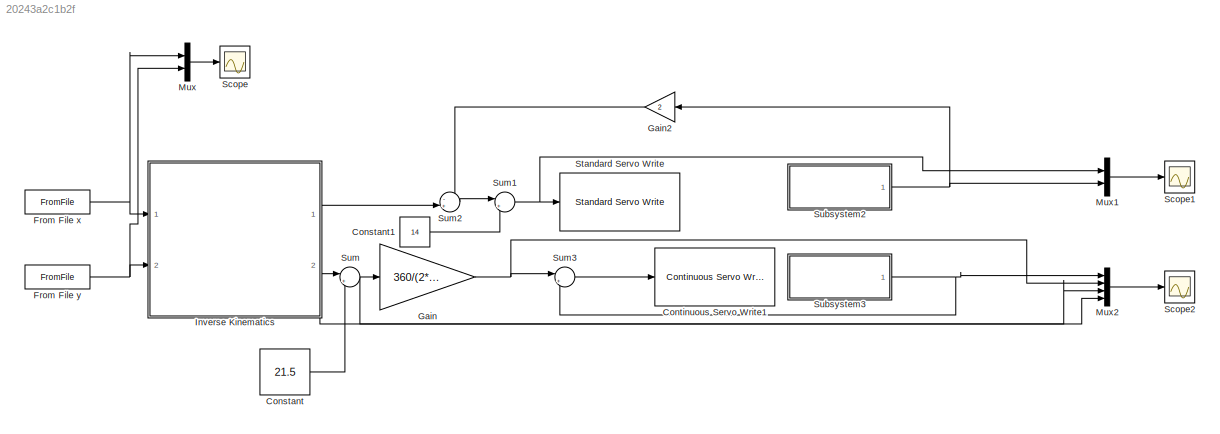
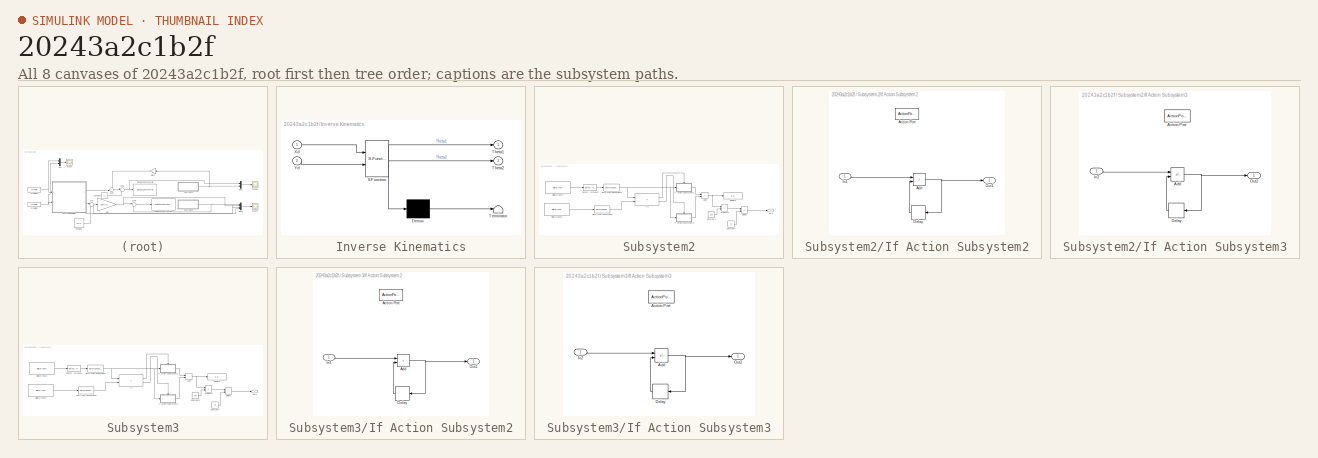
[diagram: thumbnail index - all 8 canvases of the model, root first then tree order]
MODEL slx_20243a2c1b2f
KIND model
CONFIG AbsTol = auto
CONFIG EnableMultiTasking = on
CONFIG FixedStep = 0.001
CONFIG MaxStep = auto
CONFIG MinStep = auto
CONFIG RelTol = 1e-3
CONFIG SampleTimeConstraint = Unconstrained
CONFIG SolverName = FixedStepAuto
CONFIG StartTime = 0.0
CONFIG StopTime = 50.0
BLOCK [Constant] Constant
  Value = 21.5
BLOCK [Constant] Constant1
  Value = 14
BLOCK [Reference] Continuous Servo Write1  REF=arduinolib/Continuous Servo Write
  Ports = [1]
  SourceBlock = arduinolib/Continuous Servo Write
  SourceProductBaseCode = ARDUINO
  SourceType = Arduino Continuous Servo Write
BLOCK [FromFile] From File x
  FileName = matrix_x.mat
  SampleTime = 0
BLOCK [FromFile] From File y
  FileName = matrix_y.mat
  SampleTime = 0
BLOCK [Gain] Gain
  Gain = 360/(2*2.24*pi)
BLOCK [Gain] Gain2
  Gain = 2
BLOCK [SubSystem] Inverse Kinematics
  ErrorFcn = Stateflow.Translate.translate
  PermitHierarchicalResolution = ExplicitOnly
  Ports = [2, 2]
  RequestExecContextInheritance = off
  SFBlockType = MATLAB Function
  TreatAsAtomicUnit = on
BLOCK [Demux] Inverse Kinematics/ Demux 
  Outputs = 1
  Ports = [1, 1]
BLOCK [S-Function] Inverse Kinematics/ SFunction 
  EnableBusSupport = on
  FunctionName = sf_sfun
  PortCounts = [2 3]
  Ports = [2, 3]
  SFcnIsStateOwnerBlock = off
  SFunctionDeploymentMode = off
  Tag = Stateflow S-Function 1
BLOCK [Terminator] Inverse Kinematics/ Terminator 
BLOCK [Outport] Inverse Kinematics/Theta1
  VectorParamsAs1DForOutWhenUnconnected = off
BLOCK [Outport] Inverse Kinematics/Theta2
  Port = 2
  VectorParamsAs1DForOutWhenUnconnected = off
BLOCK [Inport] Inverse Kinematics/Xd
BLOCK [Inport] Inverse Kinematics/Yd
  Port = 2
BLOCK [Mux] Mux
  DisplayOption = bar
  Inputs = 2
  Ports = [2, 1]
BLOCK [Mux] Mux1
  DisplayOption = bar
  Inputs = 2
  Ports = [2, 1]
BLOCK [Mux] Mux2
  DisplayOption = bar
  Ports = [4, 1]
BLOCK [Scope] Scope
  Floating = off
  NumInputPorts = 1
  Ports = [1]
  ScopeSpecificationString = Simulink.scopes.TimeScopeBlockCfg('CurrentConfiguration', extmgr.ConfigurationSet(extmgr.Configuration('Core','General UI',true),extmgr.Configuration('Core','Source UI',true),extmgr.Configuration('Sources','WiredSimulink',true,'DataLoggingVariableName','ScopeData1'),extmgr.Configuration('Visuals','Time Domain',true,'SerializedDisplays',{struct('MinYLimReal','-12.49987','MaxYLimReal','12.49887','YL...<+1415ch>
BLOCK [Scope] Scope1
  Floating = off
  NumInputPorts = 1
  Ports = [1]
  ScopeSpecificationString = Simulink.scopes.TimeScopeBlockCfg('CurrentConfiguration', extmgr.ConfigurationSet(extmgr.Configuration('Core','General UI',true),extmgr.Configuration('Core','Source UI',true),extmgr.Configuration('Sources','WiredSimulink',true,'DataLoggingVariableName','ScopeData1'),extmgr.Configuration('Visuals','Time Domain',true,'SerializedDisplays',{struct('MinYLimReal','-15.07338','MaxYLimReal','135.6604','YL...<+1478ch>
BLOCK [Scope] Scope2
  Floating = off
  NumInputPorts = 1
  Ports = [1]
  ScopeSpecificationString = Simulink.scopes.TimeScopeBlockCfg('CurrentConfiguration', extmgr.ConfigurationSet(extmgr.Configuration('Core','General UI',true),extmgr.Configuration('Core','Source UI',true),extmgr.Configuration('Sources','WiredSimulink',true,'DataLoggingVariableName','ScopeData2'),extmgr.Configuration('Visuals','Time Domain',true,'SerializedDisplays',{struct('MinYLimReal','-38.62837','MaxYLimReal','132.65531','Y...<+1544ch>
BLOCK [Reference] Standard Servo Write  REF=arduinolib/Standard Servo Write
  Ports = [1]
  SourceBlock = arduinolib/Standard Servo Write
  SourceProductBaseCode = ARDUINO
  SourceType = Arduino Standard Servo Write
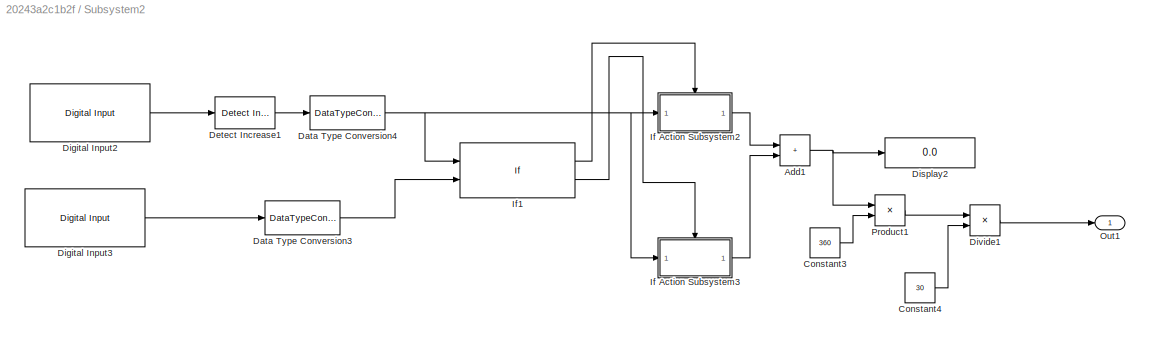
BLOCK [SubSystem] Subsystem2
  Ports = [0, 1]
  RequestExecContextInheritance = off
BLOCK [Sum] Subsystem2/Add1
  IconShape = rectangular
  Ports = [2, 1]
BLOCK [Constant] Subsystem2/Constant3
  Value = 360
BLOCK [Constant] Subsystem2/Constant4
  Value = 30
BLOCK [DataTypeConversion] Subsystem2/Data Type Conversion3
  OutDataTypeStr = int8
  RndMeth = Floor
  SaturateOnIntegerOverflow = off
BLOCK [DataTypeConversion] Subsystem2/Data Type Conversion4
  OutDataTypeStr = int8
  RndMeth = Floor
  SaturateOnIntegerOverflow = off
BLOCK [Reference] Subsystem2/Detect Increase1  REF=simulink/Logic and Bit
Operations/Detect
Increase
  Ports = [1, 1]
  SourceBlock = simulink/Logic and Bit\nOperations/Detect\nIncrease
  SourceProductBaseCode = SL
  SourceType = Detect Increase
BLOCK [Reference] Subsystem2/Digital Input2  REF=arduinolib/Digital Input
  Ports = [0, 1]
  SourceBlock = arduinolib/Digital Input
  SourceProductBaseCode = ARDUINO
  SourceType = Arduino Digital Input
BLOCK [Reference] Subsystem2/Digital Input3  REF=arduinolib/Digital Input
  Ports = [0, 1]
  SourceBlock = arduinolib/Digital Input
  SourceProductBaseCode = ARDUINO
  SourceType = Arduino Digital Input
BLOCK [Display] Subsystem2/Display2
  Decimation = 1
  Ports = [1]
BLOCK [Product] Subsystem2/Divide1
  Inputs = */
  Ports = [2, 1]
BLOCK [SubSystem] Subsystem2/If Action Subsystem2
  Ports = [1, 1, 0, 0, 0, 0, 0, 1]
  RequestExecContextInheritance = off
  TreatAsAtomicUnit = on
BLOCK [ActionPort] Subsystem2/If Action Subsystem2/Action Port
  ActionPortLabel = if(u1 >0 & u2==0)
BLOCK [Sum] Subsystem2/If Action Subsystem2/Add
  IconShape = rectangular
  Ports = [2, 1]
BLOCK [Delay] Subsystem2/If Action Subsystem2/Delay
  DelayLength = 1
  InitialCondition = 0
  InputPortMap = u0
  Ports = [1, 1]
BLOCK [Inport] Subsystem2/If Action Subsystem2/In1
BLOCK [Outport] Subsystem2/If Action Subsystem2/Out1
BLOCK [SubSystem] Subsystem2/If Action Subsystem3
  Ports = [1, 1, 0, 0, 0, 0, 0, 1]
  RequestExecContextInheritance = off
  TreatAsAtomicUnit = on
BLOCK [ActionPort] Subsystem2/If Action Subsystem3/Action Port
  ActionPortLabel = elseif( u1 >0  & u2==1)
BLOCK [Sum] Subsystem2/If Action Subsystem3/Add
  IconShape = rectangular
  Inputs = -+
  Ports = [2, 1]
BLOCK [Delay] Subsystem2/If Action Subsystem3/Delay
  DelayLength = 1
  InitialCondition = 0
  InputPortMap = u0
  Ports = [1, 1]
BLOCK [Inport] Subsystem2/If Action Subsystem3/In2
BLOCK [Outport] Subsystem2/If Action Subsystem3/Out2
BLOCK [If] Subsystem2/If1
  ElseIfExpressions = u1 >0  & u2==1
  IfExpression = u1 >0 & u2==0
  NumInputs = 2
  Ports = [2, 2]
  ShowElse = off
BLOCK [Outport] Subsystem2/Out1
BLOCK [Product] Subsystem2/Product1
  Ports = [2, 1]
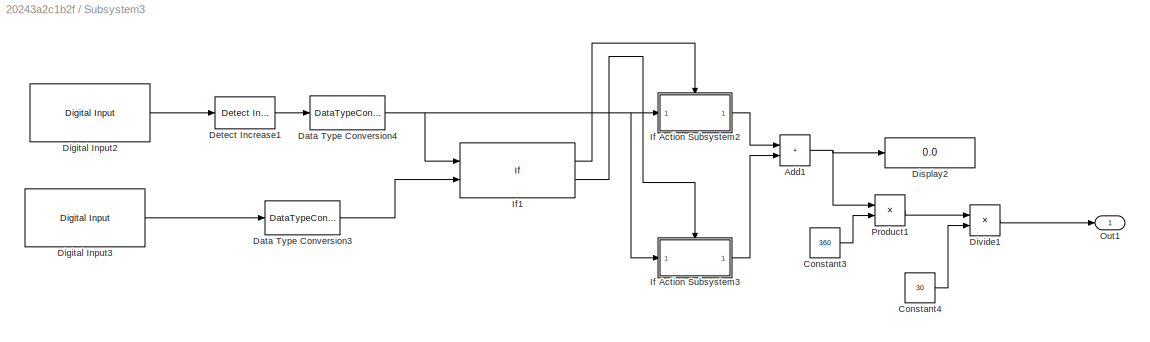
BLOCK [SubSystem] Subsystem3
  Ports = [0, 1]
  RequestExecContextInheritance = off
BLOCK [Sum] Subsystem3/Add1
  IconShape = rectangular
  Ports = [2, 1]
BLOCK [Constant] Subsystem3/Constant3
  Value = 360
BLOCK [Constant] Subsystem3/Constant4
  Value = 30
BLOCK [DataTypeConversion] Subsystem3/Data Type Conversion3
  OutDataTypeStr = int8
  RndMeth = Floor
  SaturateOnIntegerOverflow = off
BLOCK [DataTypeConversion] Subsystem3/Data Type Conversion4
  OutDataTypeStr = int8
  RndMeth = Floor
  SaturateOnIntegerOverflow = off
BLOCK [Reference] Subsystem3/Detect Increase1  REF=simulink/Logic and Bit
Operations/Detect
Increase
  Ports = [1, 1]
  SourceBlock = simulink/Logic and Bit\nOperations/Detect\nIncrease
  SourceProductBaseCode = SL
  SourceType = Detect Increase
BLOCK [Reference] Subsystem3/Digital Input2  REF=arduinolib/Digital Input
  Ports = [0, 1]
  SourceBlock = arduinolib/Digital Input
  SourceProductBaseCode = ARDUINO
  SourceType = Arduino Digital Input
BLOCK [Reference] Subsystem3/Digital Input3  REF=arduinolib/Digital Input
  Ports = [0, 1]
  SourceBlock = arduinolib/Digital Input
  SourceProductBaseCode = ARDUINO
  SourceType = Arduino Digital Input
BLOCK [Display] Subsystem3/Display2
  Decimation = 1
  Ports = [1]
BLOCK [Product] Subsystem3/Divide1
  Inputs = */
  Ports = [2, 1]
BLOCK [SubSystem] Subsystem3/If Action Subsystem2
  Ports = [1, 1, 0, 0, 0, 0, 0, 1]
  RequestExecContextInheritance = off
  TreatAsAtomicUnit = on
BLOCK [ActionPort] Subsystem3/If Action Subsystem2/Action Port
  ActionPortLabel = if(u1 >0 & u2==0)
BLOCK [Sum] Subsystem3/If Action Subsystem2/Add
  IconShape = rectangular
  Ports = [2, 1]
BLOCK [Delay] Subsystem3/If Action Subsystem2/Delay
  DelayLength = 1
  InitialCondition = 0
  InputPortMap = u0
  Ports = [1, 1]
BLOCK [Inport] Subsystem3/If Action Subsystem2/In1
BLOCK [Outport] Subsystem3/If Action Subsystem2/Out1
BLOCK [SubSystem] Subsystem3/If Action Subsystem3
  Ports = [1, 1, 0, 0, 0, 0, 0, 1]
  RequestExecContextInheritance = off
  TreatAsAtomicUnit = on
BLOCK [ActionPort] Subsystem3/If Action Subsystem3/Action Port
  ActionPortLabel = elseif( u1 >0  & u2==1)
BLOCK [Sum] Subsystem3/If Action Subsystem3/Add
  IconShape = rectangular
  Inputs = -+
  Ports = [2, 1]
BLOCK [Delay] Subsystem3/If Action Subsystem3/Delay
  DelayLength = 1
  InitialCondition = 0
  InputPortMap = u0
  Ports = [1, 1]
BLOCK [Inport] Subsystem3/If Action Subsystem3/In2
BLOCK [Outport] Subsystem3/If Action Subsystem3/Out2
BLOCK [If] Subsystem3/If1
  ElseIfExpressions = u1 >0  & u2==1
  IfExpression = u1 >0 & u2==0
  NumInputs = 2
  Ports = [2, 2]
  ShowElse = off
BLOCK [Outport] Subsystem3/Out1
BLOCK [Product] Subsystem3/Product1
  Ports = [2, 1]
BLOCK [Sum] Sum
  Inputs = |++
  Ports = [2, 1]
BLOCK [Sum] Sum1
  Inputs = |++
  Ports = [2, 1]
BLOCK [Sum] Sum2
  Inputs = -+|
  Ports = [2, 1]
BLOCK [Sum] Sum3
  Inputs = |+-
  Ports = [2, 1]
LINE Constant1:1 -> Sum1:2
LINE Constant:1 -> Sum:2
NET From File x:1 -> Inverse Kinematics:1, Mux:1
NET From File y:1 -> Inverse Kinematics:2, Mux:2
LINE Gain2:1 -> Sum2:1
NET Gain:1 -> Mux2:2, Sum3:1
LINE Inverse Kinematics:1 -> Sum2:2
NET Inverse Kinematics:2 -> Mux2:3, Sum:1
LINE Mux1:1 -> Scope1:1
LINE Mux2:1 -> Scope2:1
LINE Mux:1 -> Scope:1
NET Subsystem2/Add1:1 -> Subsystem2/Display2:1, Subsystem2/Product1:1
LINE Subsystem2/Constant3:1 -> Subsystem2/Product1:2
LINE Subsystem2/Constant4:1 -> Subsystem2/Divide1:2
LINE Subsystem2/Data Type Conversion3:1 -> Subsystem2/If1:2
NET Subsystem2/Data Type Conversion4:1 -> Subsystem2/If Action Subsystem2:1, Subsystem2/If Action Subsystem3:1, Subsystem2/If1:1
LINE Subsystem2/Detect Increase1:1 -> Subsystem2/Data Type Conversion4:1
LINE Subsystem2/Digital Input2:1 -> Subsystem2/Detect Increase1:1
LINE Subsystem2/Digital Input3:1 -> Subsystem2/Data Type Conversion3:1
LINE Subsystem2/Divide1:1 -> Subsystem2/Out1:1
NET Subsystem2/If Action Subsystem2/Add:1 -> Subsystem2/If Action Subsystem2/Delay:1, Subsystem2/If Action Subsystem2/Out1:1
LINE Subsystem2/If Action Subsystem2/Delay:1 -> Subsystem2/If Action Subsystem2/Add:2
LINE Subsystem2/If Action Subsystem2/In1:1 -> Subsystem2/If Action Subsystem2/Add:1
LINE Subsystem2/If Action Subsystem2:1 -> Subsystem2/Add1:1
NET Subsystem2/If Action Subsystem3/Add:1 -> Subsystem2/If Action Subsystem3/Delay:1, Subsystem2/If Action Subsystem3/Out2:1
LINE Subsystem2/If Action Subsystem3/Delay:1 -> Subsystem2/If Action Subsystem3/Add:2
LINE Subsystem2/If Action Subsystem3/In2:1 -> Subsystem2/If Action Subsystem3/Add:1
LINE Subsystem2/If Action Subsystem3:1 -> Subsystem2/Add1:2
LINE Subsystem2/If1:1 -> Subsystem2/If Action Subsystem2:ifaction
LINE Subsystem2/If1:2 -> Subsystem2/If Action Subsystem3:ifaction
LINE Subsystem2/Product1:1 -> Subsystem2/Divide1:1
NET Subsystem2:1 -> Gain2:1, Mux1:2
NET Subsystem3/Add1:1 -> Subsystem3/Display2:1, Subsystem3/Product1:1
LINE Subsystem3/Constant3:1 -> Subsystem3/Product1:2
LINE Subsystem3/Constant4:1 -> Subsystem3/Divide1:2
LINE Subsystem3/Data Type Conversion3:1 -> Subsystem3/If1:2
NET Subsystem3/Data Type Conversion4:1 -> Subsystem3/If Action Subsystem2:1, Subsystem3/If Action Subsystem3:1, Subsystem3/If1:1
LINE Subsystem3/Detect Increase1:1 -> Subsystem3/Data Type Conversion4:1
LINE Subsystem3/Digital Input2:1 -> Subsystem3/Detect Increase1:1
LINE Subsystem3/Digital Input3:1 -> Subsystem3/Data Type Conversion3:1
LINE Subsystem3/Divide1:1 -> Subsystem3/Out1:1
NET Subsystem3/If Action Subsystem2/Add:1 -> Subsystem3/If Action Subsystem2/Delay:1, Subsystem3/If Action Subsystem2/Out1:1
LINE Subsystem3/If Action Subsystem2/Delay:1 -> Subsystem3/If Action Subsystem2/Add:2
LINE Subsystem3/If Action Subsystem2/In1:1 -> Subsystem3/If Action Subsystem2/Add:1
LINE Subsystem3/If Action Subsystem2:1 -> Subsystem3/Add1:1
NET Subsystem3/If Action Subsystem3/Add:1 -> Subsystem3/If Action Subsystem3/Delay:1, Subsystem3/If Action Subsystem3/Out2:1
LINE Subsystem3/If Action Subsystem3/Delay:1 -> Subsystem3/If Action Subsystem3/Add:2
LINE Subsystem3/If Action Subsystem3/In2:1 -> Subsystem3/If Action Subsystem3/Add:1
LINE Subsystem3/If Action Subsystem3:1 -> Subsystem3/Add1:2
LINE Subsystem3/If1:1 -> Subsystem3/If Action Subsystem2:ifaction
LINE Subsystem3/If1:2 -> Subsystem3/If Action Subsystem3:ifaction
LINE Subsystem3/Product1:1 -> Subsystem3/Divide1:1
NET Subsystem3:1 -> Mux2:1, Sum3:2
NET Sum1:1 -> Mux1:1, Standard Servo Write:1
LINE Sum2:1 -> Sum1:1
LINE Sum3:1 -> Continuous Servo Write1:1
NET Sum:1 -> Gain:1, Mux2:4
note: NET lines group one-source signal fan-out (src -> all destinations, sorted); 1:1 wires keep LINE
CHART Inverse Kinematics states=1 transitions=1
  STATE_LABEL 'eML_blk_kernel()'
  STATE_LABEL 'SCRIPT:\nfunction [Theta1,Theta2] = InverseKinematics(Xd,Yd)\nl1 = 2.25;\nl2 = 21.5;\nq1r = (atan2((sqrt(abs(-l1^2+Xd^2+Yd^2))+Yd),(l1+Xd)));\nTheta1 = rad2deg(q1r);\nTheta2 = -sin(q1r)*Xd +cos(q1r)*Yd-l2;'
CHART  states=0 transitions=0
